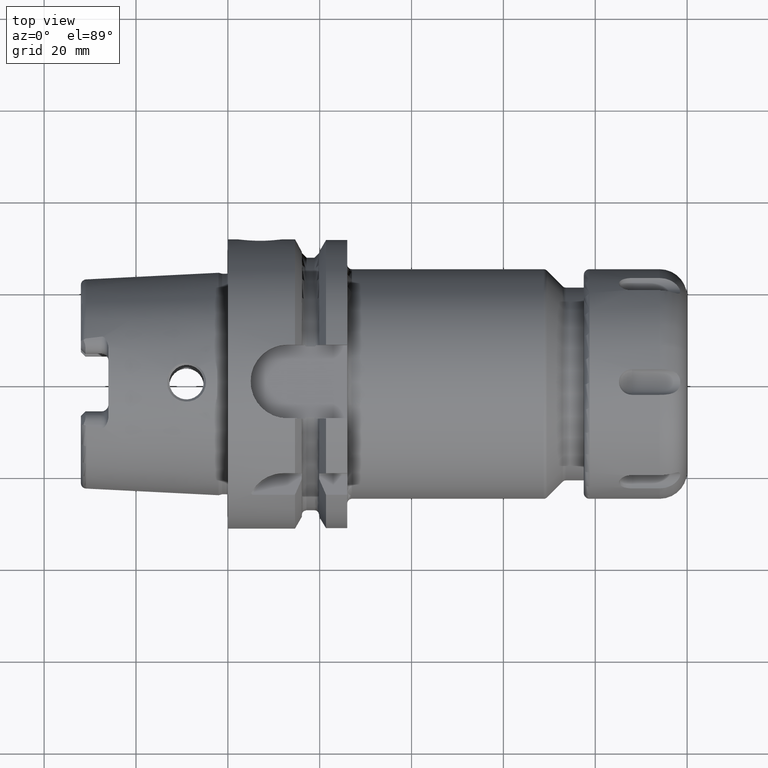
[diagram: clean part render]
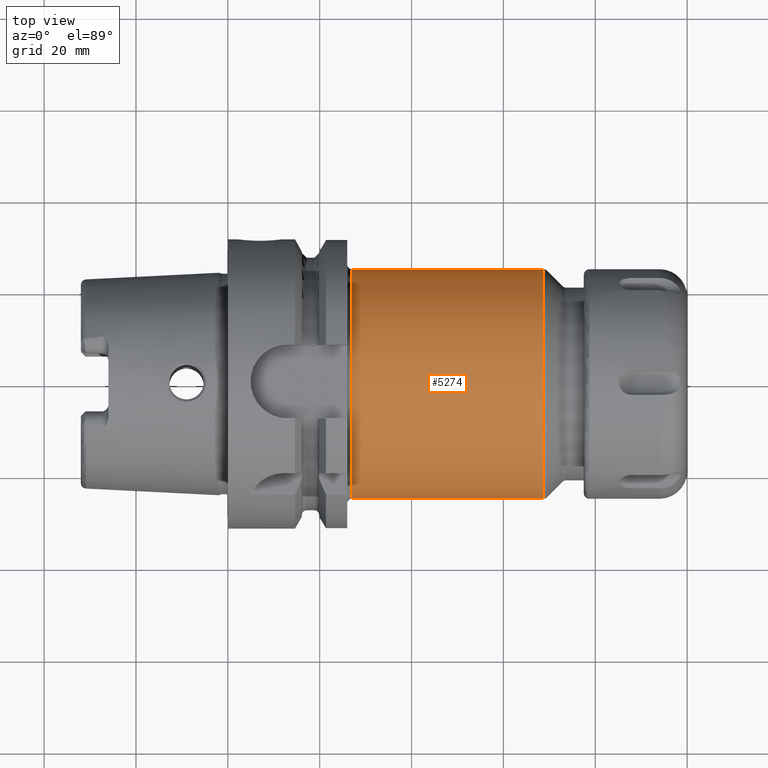
[diagram: same view with one face highlighted and labeled with its STEP entity id]
A machine part, top view. The second image highlights one B-rep face of the part: STEP entity #5274.
In plain terms, the highlighted cylindrical surface (partial cylindrical patch) has radius 25 mm, axis along (1, 0, 0).
Its self-contained STEP definition (entity closure, byte-faithful):
#1966=CARTESIAN_POINT('',(6.875678643763E1,0.E0,0.E0));
#1967=DIRECTION('',(-1.E0,0.E0,0.E0));
#1968=DIRECTION('',(0.E0,-1.E0,0.E0));
#1969=AXIS2_PLACEMENT_3D('',#1966,#1967,#1968);
#1971=CARTESIAN_POINT('',(2.7E1,0.E0,0.E0));
#1972=DIRECTION('',(1.E0,0.E0,0.E0));
#1973=DIRECTION('',(0.E0,1.E0,0.E0));
#1974=AXIS2_PLACEMENT_3D('',#1971,#1972,#1973);
#1991=DIRECTION('',(-1.E0,0.E0,2.649877713041E-14));
#1992=VECTOR('',#1991,4.175678643763E1);
#1993=CARTESIAN_POINT('',(6.875678643763E1,2.5E1,-3.804483620173E-13));
#1994=LINE('',#1993,#1992);
#2000=DIRECTION('',(-1.E0,0.E0,-2.643545788707E-14));
#2001=VECTOR('',#2000,4.175678643763E1);
#2002=CARTESIAN_POINT('',(6.875678643763E1,-2.5E1,3.796826682237E-13));
#2003=LINE('',#2002,#2001);
#3120=CARTESIAN_POINT('',(2.7E1,-2.5E1,0.E0));
#3121=CARTESIAN_POINT('',(2.7E1,2.5E1,0.E0));
#3122=VERTEX_POINT('',#3120);
#3123=VERTEX_POINT('',#3121);
#3132=CARTESIAN_POINT('',(6.875678643763E1,2.5E1,0.E0));
#3133=CARTESIAN_POINT('',(6.875678643763E1,-2.5E1,0.E0));
#3134=VERTEX_POINT('',#3132);
#3135=VERTEX_POINT('',#3133);
#5260=CARTESIAN_POINT('',(2.271645E1,0.E0,0.E0));
#5261=DIRECTION('',(1.E0,0.E0,0.E0));
#5262=DIRECTION('',(0.E0,-1.E0,0.E0));
#5263=AXIS2_PLACEMENT_3D('',#5260,#5261,#5262);
#5264=CYLINDRICAL_SURFACE('',#5263,2.5E1);
#5266=ORIENTED_EDGE('',*,*,#5265,.F.);
#5268=ORIENTED_EDGE('',*,*,#5267,.T.);
#5269=ORIENTED_EDGE('',*,*,#5254,.F.);
#5271=ORIENTED_EDGE('',*,*,#5270,.F.);
#5272=EDGE_LOOP('',(#5266,#5268,#5269,#5271));
#5273=FACE_OUTER_BOUND('',#5272,.F.);
#5274=ADVANCED_FACE('',(#5273),#5264,.T.);
#1970=CIRCLE('',#1969,2.5E1);
#1975=CIRCLE('',#1974,2.5E1);
#5254=EDGE_CURVE('',#3123,#3122,#1975,.T.);
#5265=EDGE_CURVE('',#3135,#3134,#1970,.T.);
#5267=EDGE_CURVE('',#3135,#3122,#2003,.T.);
#5270=EDGE_CURVE('',#3134,#3123,#1994,.T.);